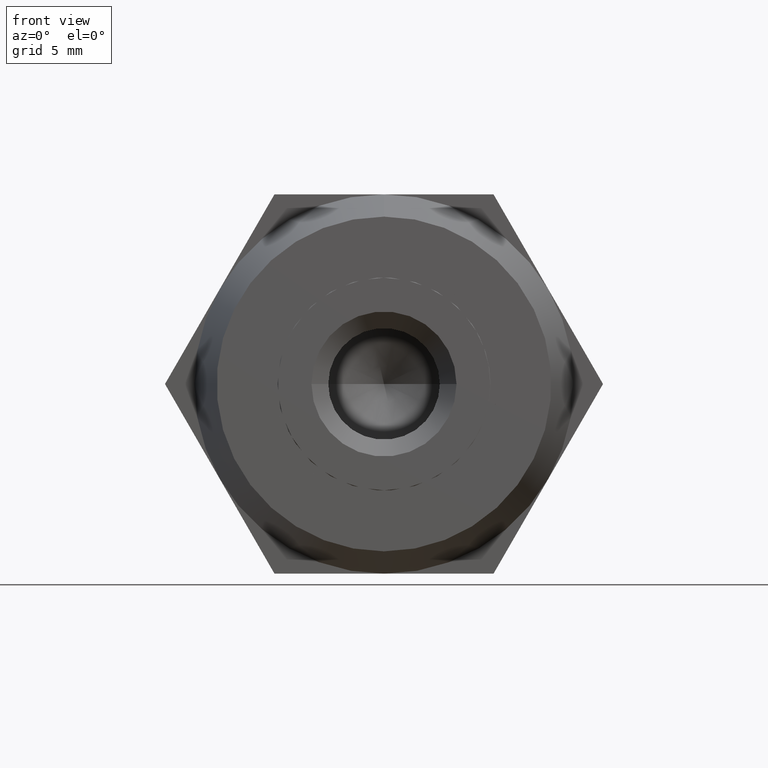
[diagram: clean part render]
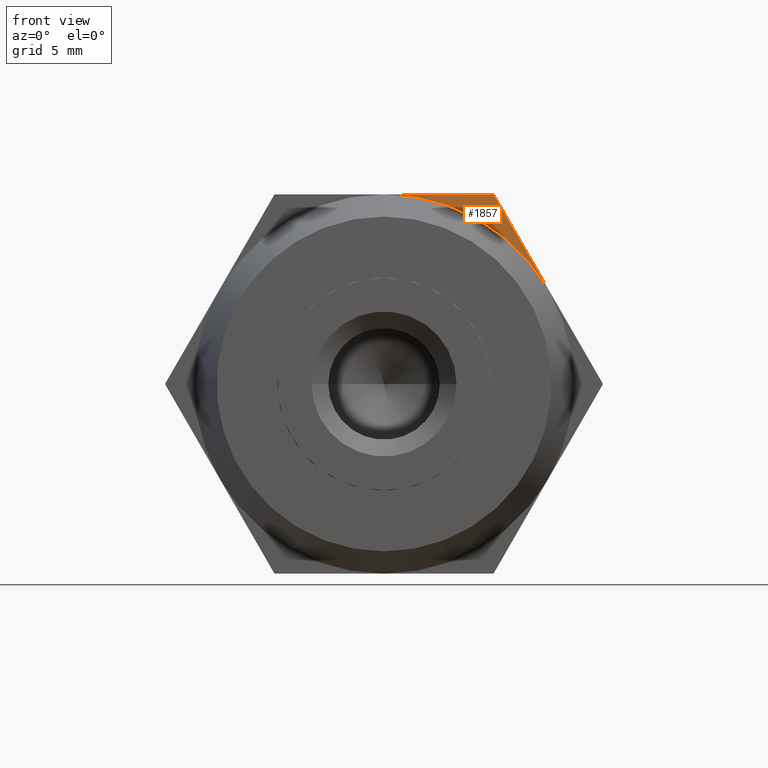
[diagram: same view with one face highlighted and labeled with its STEP entity id]
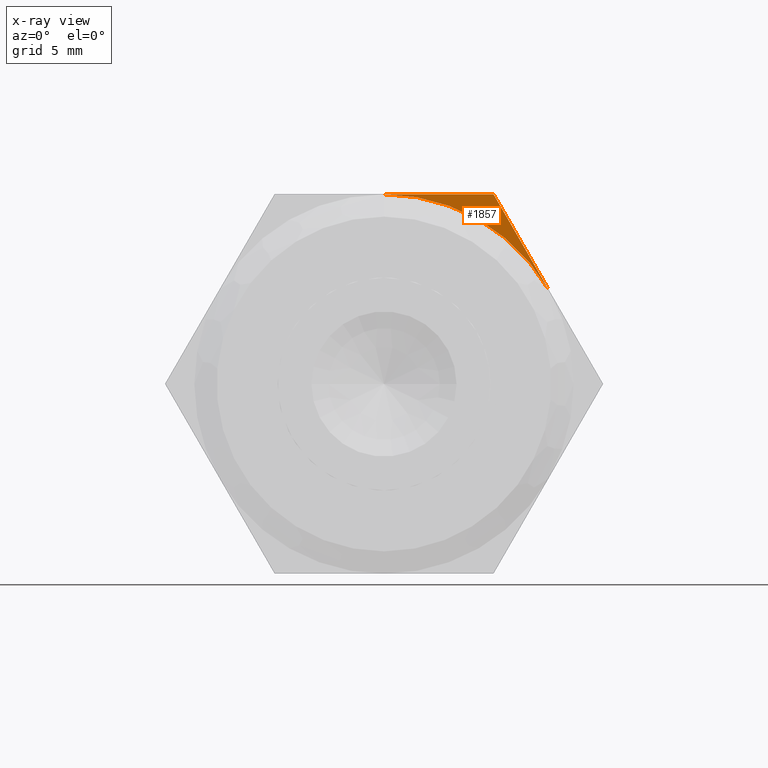
[diagram: x-ray of the same camera — body ghosted, the highlighted face saturated]
A machine part, front view. The second image highlights one B-rep face of the part: STEP entity #1857.
The next image is the same camera in x-ray: the body ghosted, the highlighted face saturated — about 0% of this face is hidden behind the body in this view.
In plain terms, the highlighted planar face has unit normal (0, 1, 0).
Its self-contained STEP definition (entity closure, byte-faithful):
#25 = ORIENTED_EDGE ( 'NONE', *, *, #3492, .T. ) ;
#121 = AXIS2_PLACEMENT_3D ( 'NONE', #1607, #1058, #2839 ) ;
#217 = CARTESIAN_POINT ( 'NONE',  ( 0.0000000000000000000, -2.500000000000000000, 0.0000000000000000000 ) ) ;
#298 = LINE ( 'NONE', #1628, #664 ) ;
#354 = VERTEX_POINT ( 'NONE', #2675 ) ;
#610 = LINE ( 'NONE', #2632, #3681 ) ;
#664 = VECTOR ( 'NONE', #981, 1000.000000000000000 ) ;
#953 = EDGE_CURVE ( 'NONE', #1020, #3654, #298, .T. ) ;
#981 = DIRECTION ( 'NONE',  ( 0.4999999999999998900, 0.0000000000000000000, -0.8660254037844387100 ) ) ;
#1004 = EDGE_LOOP ( 'NONE', ( #1702, #25, #3572 ) ) ;
#1020 = VERTEX_POINT ( 'NONE', #3744 ) ;
#1058 = DIRECTION ( 'NONE',  ( 0.0000000000000000000, 1.000000000000000000, 0.0000000000000000000 ) ) ;
#1112 = PLANE ( 'NONE',  #2437 ) ;
#1126 = DIRECTION ( 'NONE',  ( 0.0000000000000000000, 0.0000000000000000000, 1.000000000000000000 ) ) ;
#1384 = DIRECTION ( 'NONE',  ( 0.0000000000000000000, 1.000000000000000000, 0.0000000000000000000 ) ) ;
#1607 = CARTESIAN_POINT ( 'NONE',  ( 0.0000000000000000000, -2.500000000000000000, 0.0000000000000000000 ) ) ;
#1628 = CARTESIAN_POINT ( 'NONE',  ( 4.907477288111820700, -2.500000000000000000, 8.500000000000000000 ) ) ;
#1702 = ORIENTED_EDGE ( 'NONE', *, *, #3865, .F. ) ;
#1857 = ADVANCED_FACE ( 'NONE', ( #2690 ), #1112, .F. ) ;
#2300 = CARTESIAN_POINT ( 'NONE',  ( 7.361215932167730200, -2.500000000000000000, 4.250000000000000000 ) ) ;
#2437 = AXIS2_PLACEMENT_3D ( 'NONE', #217, #1384, #1126 ) ;
#2632 = CARTESIAN_POINT ( 'NONE',  ( -4.907477288111829600, -2.500000000000000000, 8.500000000000000000 ) ) ;
#2675 = CARTESIAN_POINT ( 'NONE',  ( -1.502314598737160000E-015, -2.500000000000000000, 8.500000000000000000 ) ) ;
#2676 = DIRECTION ( 'NONE',  ( 1.000000000000000000, 0.0000000000000000000, 1.767428939690774800E-016 ) ) ;
#2690 = FACE_OUTER_BOUND ( 'NONE', #1004, .T. ) ;
#2839 = DIRECTION ( 'NONE',  ( 0.0000000000000000000, 0.0000000000000000000, 1.000000000000000000 ) ) ;
#3314 = CIRCLE ( 'NONE', #121, 8.500000000000000000 ) ;
#3492 = EDGE_CURVE ( 'NONE', #354, #3654, #3314, .T. ) ;
#3572 = ORIENTED_EDGE ( 'NONE', *, *, #953, .F. ) ;
#3654 = VERTEX_POINT ( 'NONE', #2300 ) ;
#3681 = VECTOR ( 'NONE', #2676, 1000.000000000000000 ) ;
#3744 = CARTESIAN_POINT ( 'NONE',  ( 4.907477288111820700, -2.500000000000000000, 8.500000000000000000 ) ) ;
#3865 = EDGE_CURVE ( 'NONE', #354, #1020, #610, .T. ) ;